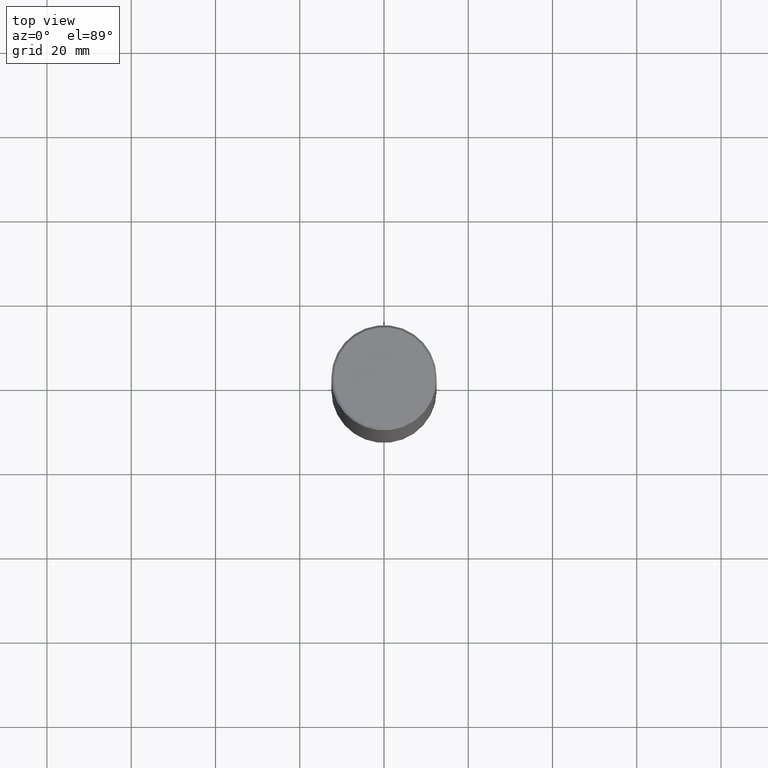
[diagram: clean part render]
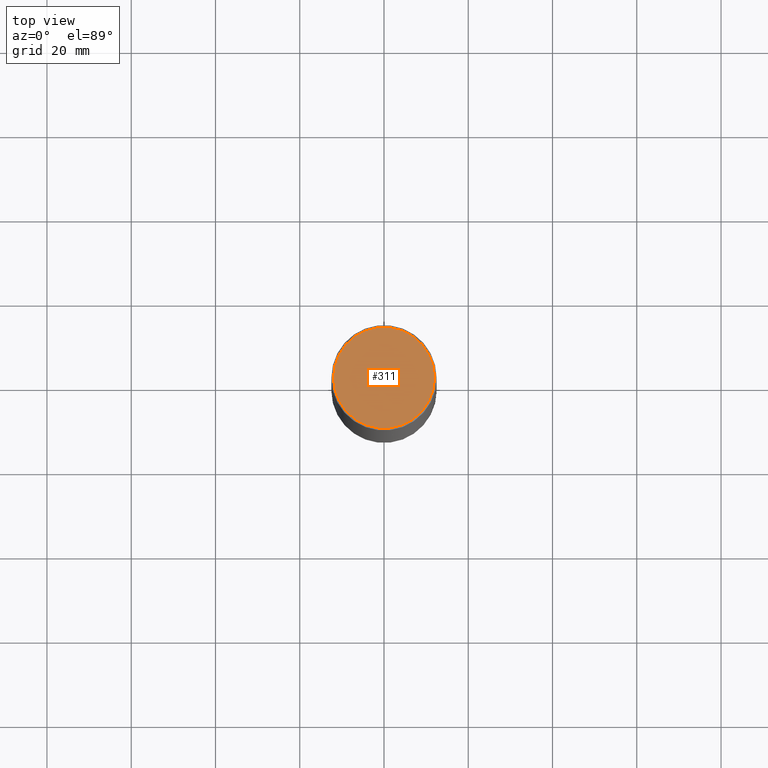
[diagram: same view with one face highlighted and labeled with its STEP entity id]
A machine part, top view. The second image highlights one B-rep face of the part: STEP entity #311.
In plain terms, the highlighted planar face has unit normal (0, -0, -1).
Its self-contained STEP definition (entity closure, byte-faithful):
#27 = VERTEX_POINT ( 'NONE', #129 ) ;
#28 = CARTESIAN_POINT ( 'NONE',  ( -0.4721499999999996255, 3.331920641657999252E-15, 8.537024980177643606E-18 ) ) ;
#73 = DIRECTION ( 'NONE',  ( -1.000000000000000000, 6.982962677686265922E-15, -4.876176775795935793E-29 ) ) ;
#75 = DIRECTION ( 'NONE',  ( 1.000000000000000000, -6.982962677686265922E-15, 4.876006802227162976E-29 ) ) ;
#84 = DIRECTION ( 'NONE',  ( -2.445468806185136597E-29, 3.491481338843145583E-15, 1.000000000000000000 ) ) ;
#126 = EDGE_CURVE ( 'NONE', #153, #27, #239, .T. ) ;
#129 = CARTESIAN_POINT ( 'NONE',  ( 0.4721499999999996255, -3.342703923013973396E-15, 8.537024980224040028E-18 ) ) ;
#153 = VERTEX_POINT ( 'NONE', #28 ) ;
#192 = DIRECTION ( 'NONE',  ( 2.438088387897960049E-29, -3.491481338843145188E-15, -1.000000000000000000 ) ) ;
#203 = AXIS2_PLACEMENT_3D ( 'NONE', #361, #84, #248 ) ;
#213 = PLANE ( 'NONE',  #294 ) ;
#227 = AXIS2_PLACEMENT_3D ( 'NONE', #307, #334, #75 ) ;
#233 = CIRCLE ( 'NONE', #227, 0.4721499999999996255 ) ;
#239 = CIRCLE ( 'NONE', #203, 0.4721499999999996255 ) ;
#248 = DIRECTION ( 'NONE',  ( 1.000000000000000000, -6.982962677686265922E-15, 4.876006802227162976E-29 ) ) ;
#249 = ORIENTED_EDGE ( 'NONE', *, *, #126, .T. ) ;
#251 = EDGE_LOOP ( 'NONE', ( #249, #333 ) ) ;
#294 = AXIS2_PLACEMENT_3D ( 'NONE', #358, #192, #73 ) ;
#303 = FACE_OUTER_BOUND ( 'NONE', #251, .T. ) ;
#307 = CARTESIAN_POINT ( 'NONE',  ( -2.087702828670439639E-46, 2.980686340760894400E-32, 8.537024980200822558E-18 ) ) ;
#311 = ADVANCED_FACE ( 'NONE', ( #303 ), #213, .F. ) ;
#333 = ORIENTED_EDGE ( 'NONE', *, *, #345, .T. ) ;
#334 = DIRECTION ( 'NONE',  ( -2.445468806185136597E-29, 3.491481338843145583E-15, 1.000000000000000000 ) ) ;
#345 = EDGE_CURVE ( 'NONE', #27, #153, #233, .T. ) ;
#358 = CARTESIAN_POINT ( 'NONE',  ( 3.297005828269567997E-15, 0.4721499999999996255, -1.644234401644689488E-15 ) ) ;
#361 = CARTESIAN_POINT ( 'NONE',  ( -2.087702828670439639E-46, 2.980686340760894400E-32, 8.537024980200822558E-18 ) ) ;